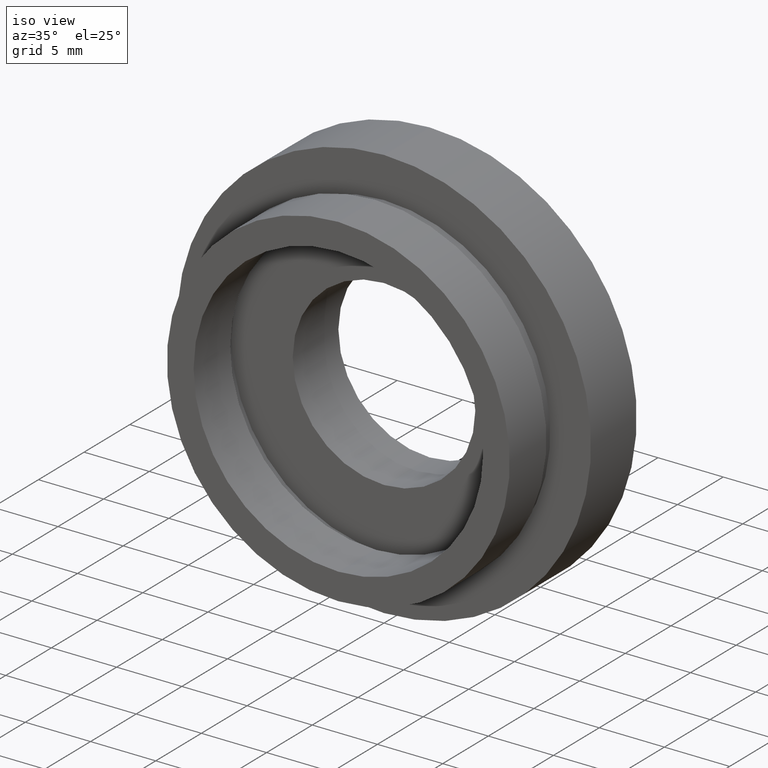
[diagram: clean part render]
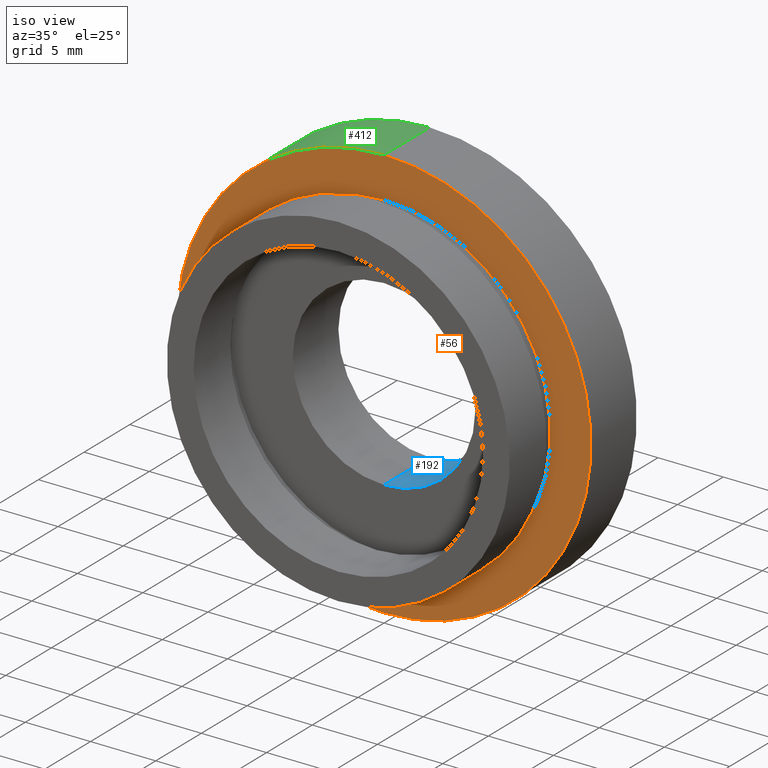
[diagram: same view with three faces highlighted in distinct colors, each labeled with its STEP entity id]
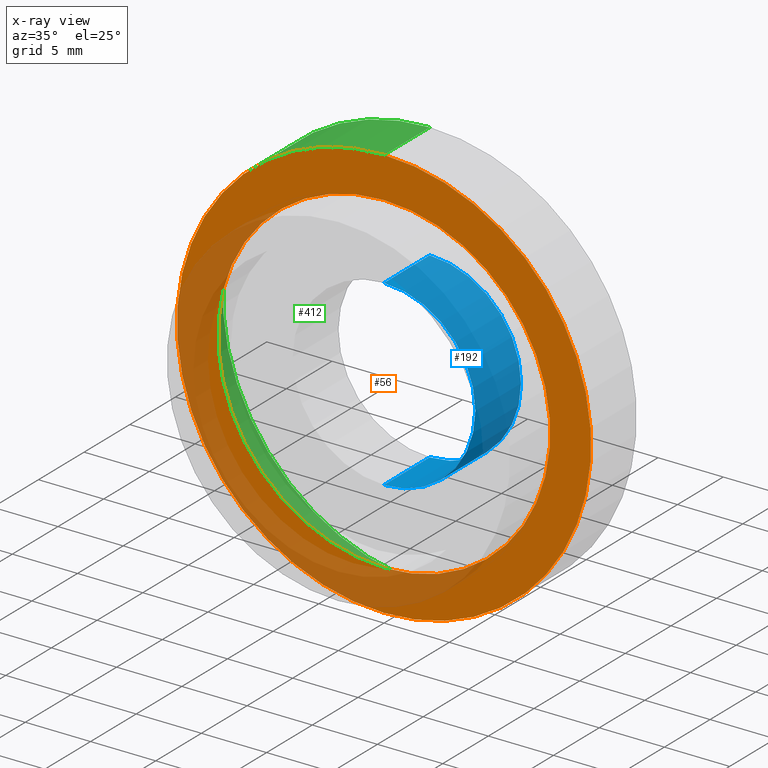
[diagram: x-ray of the same camera — body ghosted, the three highlighted faces saturated]
A machine part, iso view with three faces highlighted in distinct colors.
The next image is the same camera in x-ray (body ghosted, the three faces saturated) — at least one of them is partly hidden behind the body in this view.
Their STEP definitions:

[orange] entity #56 — the highlighted planar face has unit normal (-0, 1, 0).
#7 = ORIENTED_EDGE ( 'NONE', *, *, #143, .T. ) ;
#46 = CARTESIAN_POINT ( 'NONE',  ( 15.87500000000000000, 5.000000000000000900, 0.0000000000000000000 ) ) ;
#56 = ADVANCED_FACE ( 'NONE', ( #171, #326 ), #64, .F. ) ;
#61 = CIRCLE ( 'NONE', #371, 12.75000000000000000 ) ;
#64 = PLANE ( 'NONE',  #146 ) ;
#73 = DIRECTION ( 'NONE',  ( -0.0000000000000000000, 1.000000000000000000, -0.0000000000000000000 ) ) ;
#87 = CARTESIAN_POINT ( 'NONE',  ( 0.0000000000000000000, 5.000000000000000900, 12.75000000000000000 ) ) ;
#88 = VERTEX_POINT ( 'NONE', #188 ) ;
#126 = DIRECTION ( 'NONE',  ( -0.0000000000000000000, 1.000000000000000000, -0.0000000000000000000 ) ) ;
#143 = EDGE_CURVE ( 'NONE', #309, #409, #61, .T. ) ;
#146 = AXIS2_PLACEMENT_3D ( 'NONE', #46, #237, #523 ) ;
#152 = CIRCLE ( 'NONE', #380, 12.75000000000000000 ) ;
#159 = EDGE_LOOP ( 'NONE', ( #284, #170 ) ) ;
#164 = EDGE_CURVE ( 'NONE', #88, #564, #425, .T. ) ;
#170 = ORIENTED_EDGE ( 'NONE', *, *, #164, .F. ) ;
#171 = FACE_OUTER_BOUND ( 'NONE', #159, .T. ) ;
#188 = CARTESIAN_POINT ( 'NONE',  ( 1.944126793646423200E-015, 5.000000000000000900, -15.87500000000000000 ) ) ;
#194 = DIRECTION ( 'NONE',  ( 0.0000000000000000000, 0.0000000000000000000, 1.000000000000000000 ) ) ;
#217 = CARTESIAN_POINT ( 'NONE',  ( 1.561424668912875100E-015, 5.000000000000000900, -12.75000000000000000 ) ) ;
#237 = DIRECTION ( 'NONE',  ( -0.0000000000000000000, 1.000000000000000000, 0.0000000000000000000 ) ) ;
#245 = CARTESIAN_POINT ( 'NONE',  ( 0.0000000000000000000, 5.000000000000000900, 15.87500000000000000 ) ) ;
#269 = DIRECTION ( 'NONE',  ( 0.0000000000000000000, 0.0000000000000000000, 1.000000000000000000 ) ) ;
#284 = ORIENTED_EDGE ( 'NONE', *, *, #553, .F. ) ;
#285 = CIRCLE ( 'NONE', #330, 15.87500000000000000 ) ;
#309 = VERTEX_POINT ( 'NONE', #217 ) ;
#326 = FACE_BOUND ( 'NONE', #571, .T. ) ;
#330 = AXIS2_PLACEMENT_3D ( 'NONE', #537, #73, #430 ) ;
#371 = AXIS2_PLACEMENT_3D ( 'NONE', #384, #393, #194 ) ;
#376 = CARTESIAN_POINT ( 'NONE',  ( 0.0000000000000000000, 5.000000000000000900, 0.0000000000000000000 ) ) ;
#380 = AXIS2_PLACEMENT_3D ( 'NONE', #619, #606, #436 ) ;
#384 = CARTESIAN_POINT ( 'NONE',  ( 0.0000000000000000000, 5.000000000000000900, 0.0000000000000000000 ) ) ;
#393 = DIRECTION ( 'NONE',  ( -0.0000000000000000000, 1.000000000000000000, -0.0000000000000000000 ) ) ;
#409 = VERTEX_POINT ( 'NONE', #87 ) ;
#425 = CIRCLE ( 'NONE', #447, 15.87500000000000000 ) ;
#430 = DIRECTION ( 'NONE',  ( 0.0000000000000000000, 0.0000000000000000000, 1.000000000000000000 ) ) ;
#436 = DIRECTION ( 'NONE',  ( 0.0000000000000000000, 0.0000000000000000000, 1.000000000000000000 ) ) ;
#447 = AXIS2_PLACEMENT_3D ( 'NONE', #376, #126, #269 ) ;
#523 = DIRECTION ( 'NONE',  ( 0.0000000000000000000, 0.0000000000000000000, 1.000000000000000000 ) ) ;
#537 = CARTESIAN_POINT ( 'NONE',  ( 0.0000000000000000000, 5.000000000000000900, 0.0000000000000000000 ) ) ;
#550 = ORIENTED_EDGE ( 'NONE', *, *, #560, .T. ) ;
#553 = EDGE_CURVE ( 'NONE', #564, #88, #285, .T. ) ;
#560 = EDGE_CURVE ( 'NONE', #409, #309, #152, .T. ) ;
#564 = VERTEX_POINT ( 'NONE', #245 ) ;
#571 = EDGE_LOOP ( 'NONE', ( #550, #7 ) ) ;
#606 = DIRECTION ( 'NONE',  ( -0.0000000000000000000, 1.000000000000000000, -0.0000000000000000000 ) ) ;
#619 = CARTESIAN_POINT ( 'NONE',  ( 0.0000000000000000000, 5.000000000000000900, 0.0000000000000000000 ) ) ;

[blue] entity #192 — the highlighted cylindrical surface (partial cylindrical patch) has radius 7 mm, axis along (-0, 1, -0).
#13 = VECTOR ( 'NONE', #95, 1000.000000000000000 ) ;
#39 = CARTESIAN_POINT ( 'NONE',  ( 0.0000000000000000000, 13.74468085106383300, 0.0000000000000000000 ) ) ;
#55 = CARTESIAN_POINT ( 'NONE',  ( 8.572527594031474200E-016, 13.74468085106383300, -7.000000000000001800 ) ) ;
#85 = CARTESIAN_POINT ( 'NONE',  ( 0.0000000000000000000, 4.999999999999999100, 7.000000000000001800 ) ) ;
#95 = DIRECTION ( 'NONE',  ( -0.0000000000000000000, 1.000000000000000000, -0.0000000000000000000 ) ) ;
#112 = CARTESIAN_POINT ( 'NONE',  ( 0.0000000000000000000, 10.00000000000000000, 7.000000000000001800 ) ) ;
#122 = VERTEX_POINT ( 'NONE', #403 ) ;
#135 = VERTEX_POINT ( 'NONE', #85 ) ;
#144 = VECTOR ( 'NONE', #268, 1000.000000000000000 ) ;
#181 = CARTESIAN_POINT ( 'NONE',  ( 0.0000000000000000000, 13.74468085106383300, 7.000000000000001800 ) ) ;
#186 = AXIS2_PLACEMENT_3D ( 'NONE', #576, #295, #499 ) ;
#192 = ADVANCED_FACE ( 'NONE', ( #623 ), #347, .F. ) ;
#203 = ORIENTED_EDGE ( 'NONE', *, *, #520, .T. ) ;
#214 = AXIS2_PLACEMENT_3D ( 'NONE', #39, #545, #464 ) ;
#221 = CARTESIAN_POINT ( 'NONE',  ( 8.572527594031474200E-016, 4.999999999999999100, -7.000000000000001800 ) ) ;
#234 = EDGE_LOOP ( 'NONE', ( #271, #449, #319, #203 ) ) ;
#241 = LINE ( 'NONE', #55, #13 ) ;
#268 = DIRECTION ( 'NONE',  ( -0.0000000000000000000, 1.000000000000000000, -0.0000000000000000000 ) ) ;
#271 = ORIENTED_EDGE ( 'NONE', *, *, #385, .F. ) ;
#277 = EDGE_CURVE ( 'NONE', #135, #397, #471, .T. ) ;
#295 = DIRECTION ( 'NONE',  ( -0.0000000000000000000, 1.000000000000000000, -0.0000000000000000000 ) ) ;
#319 = ORIENTED_EDGE ( 'NONE', *, *, #597, .T. ) ;
#320 = DIRECTION ( 'NONE',  ( 0.0000000000000000000, 0.0000000000000000000, 1.000000000000000000 ) ) ;
#347 = CYLINDRICAL_SURFACE ( 'NONE', #214, 7.000000000000001800 ) ;
#349 = DIRECTION ( 'NONE',  ( -0.0000000000000000000, 1.000000000000000000, -0.0000000000000000000 ) ) ;
#353 = CARTESIAN_POINT ( 'NONE',  ( 0.0000000000000000000, 4.999999999999999100, 0.0000000000000000000 ) ) ;
#357 = VERTEX_POINT ( 'NONE', #112 ) ;
#385 = EDGE_CURVE ( 'NONE', #397, #122, #241, .T. ) ;
#397 = VERTEX_POINT ( 'NONE', #221 ) ;
#403 = CARTESIAN_POINT ( 'NONE',  ( 8.572527594031474200E-016, 10.00000000000000000, -7.000000000000001800 ) ) ;
#449 = ORIENTED_EDGE ( 'NONE', *, *, #277, .F. ) ;
#464 = DIRECTION ( 'NONE',  ( 0.0000000000000000000, 0.0000000000000000000, 1.000000000000000000 ) ) ;
#471 = CIRCLE ( 'NONE', #574, 7.000000000000001800 ) ;
#499 = DIRECTION ( 'NONE',  ( 0.0000000000000000000, 0.0000000000000000000, 1.000000000000000000 ) ) ;
#520 = EDGE_CURVE ( 'NONE', #357, #122, #559, .T. ) ;
#543 = LINE ( 'NONE', #181, #144 ) ;
#545 = DIRECTION ( 'NONE',  ( -0.0000000000000000000, 1.000000000000000000, -0.0000000000000000000 ) ) ;
#559 = CIRCLE ( 'NONE', #186, 7.000000000000001800 ) ;
#574 = AXIS2_PLACEMENT_3D ( 'NONE', #353, #349, #320 ) ;
#576 = CARTESIAN_POINT ( 'NONE',  ( 0.0000000000000000000, 10.00000000000000000, 0.0000000000000000000 ) ) ;
#597 = EDGE_CURVE ( 'NONE', #135, #357, #543, .T. ) ;
#623 = FACE_OUTER_BOUND ( 'NONE', #234, .T. ) ;

[green] entity #412 — the highlighted cylindrical surface (partial cylindrical patch) has radius 15.875 mm, axis along (-0, 1, -0).
#8 = CYLINDRICAL_SURFACE ( 'NONE', #257, 15.87500000000000000 ) ;
#21 = LINE ( 'NONE', #24, #609 ) ;
#24 = CARTESIAN_POINT ( 'NONE',  ( 0.0000000000000000000, 13.74468085106383300, 15.87500000000000000 ) ) ;
#25 = CARTESIAN_POINT ( 'NONE',  ( 0.0000000000000000000, 13.74468085106383300, 0.0000000000000000000 ) ) ;
#30 = VERTEX_POINT ( 'NONE', #279 ) ;
#60 = VERTEX_POINT ( 'NONE', #218 ) ;
#78 = DIRECTION ( 'NONE',  ( 0.0000000000000000000, 0.0000000000000000000, 1.000000000000000000 ) ) ;
#88 = VERTEX_POINT ( 'NONE', #188 ) ;
#113 = ORIENTED_EDGE ( 'NONE', *, *, #164, .T. ) ;
#114 = DIRECTION ( 'NONE',  ( -0.0000000000000000000, 1.000000000000000000, -0.0000000000000000000 ) ) ;
#118 = EDGE_CURVE ( 'NONE', #30, #60, #508, .T. ) ;
#126 = DIRECTION ( 'NONE',  ( -0.0000000000000000000, 1.000000000000000000, -0.0000000000000000000 ) ) ;
#142 = ORIENTED_EDGE ( 'NONE', *, *, #118, .F. ) ;
#164 = EDGE_CURVE ( 'NONE', #88, #564, #425, .T. ) ;
#167 = VECTOR ( 'NONE', #281, 1000.000000000000000 ) ;
#188 = CARTESIAN_POINT ( 'NONE',  ( 1.944126793646423200E-015, 5.000000000000000900, -15.87500000000000000 ) ) ;
#218 = CARTESIAN_POINT ( 'NONE',  ( 0.0000000000000000000, 10.00000000000000000, 15.87500000000000000 ) ) ;
#230 = FACE_OUTER_BOUND ( 'NONE', #616, .T. ) ;
#245 = CARTESIAN_POINT ( 'NONE',  ( 0.0000000000000000000, 5.000000000000000900, 15.87500000000000000 ) ) ;
#257 = AXIS2_PLACEMENT_3D ( 'NONE', #25, #114, #78 ) ;
#269 = DIRECTION ( 'NONE',  ( 0.0000000000000000000, 0.0000000000000000000, 1.000000000000000000 ) ) ;
#279 = CARTESIAN_POINT ( 'NONE',  ( 1.944126793646423200E-015, 10.00000000000000000, -15.87500000000000000 ) ) ;
#280 = CARTESIAN_POINT ( 'NONE',  ( 1.944126793646423200E-015, 13.74468085106383300, -15.87500000000000000 ) ) ;
#281 = DIRECTION ( 'NONE',  ( -0.0000000000000000000, 1.000000000000000000, -0.0000000000000000000 ) ) ;
#318 = DIRECTION ( 'NONE',  ( 0.0000000000000000000, 0.0000000000000000000, 1.000000000000000000 ) ) ;
#374 = DIRECTION ( 'NONE',  ( -0.0000000000000000000, 1.000000000000000000, -0.0000000000000000000 ) ) ;
#376 = CARTESIAN_POINT ( 'NONE',  ( 0.0000000000000000000, 5.000000000000000900, 0.0000000000000000000 ) ) ;
#412 = ADVANCED_FACE ( 'NONE', ( #230 ), #8, .T. ) ;
#413 = ORIENTED_EDGE ( 'NONE', *, *, #474, .T. ) ;
#425 = CIRCLE ( 'NONE', #447, 15.87500000000000000 ) ;
#447 = AXIS2_PLACEMENT_3D ( 'NONE', #376, #126, #269 ) ;
#474 = EDGE_CURVE ( 'NONE', #564, #60, #21, .T. ) ;
#475 = CARTESIAN_POINT ( 'NONE',  ( 0.0000000000000000000, 10.00000000000000000, 0.0000000000000000000 ) ) ;
#508 = CIRCLE ( 'NONE', #610, 15.87500000000000000 ) ;
#536 = DIRECTION ( 'NONE',  ( -0.0000000000000000000, 1.000000000000000000, -0.0000000000000000000 ) ) ;
#538 = EDGE_CURVE ( 'NONE', #88, #30, #552, .T. ) ;
#548 = ORIENTED_EDGE ( 'NONE', *, *, #538, .F. ) ;
#552 = LINE ( 'NONE', #280, #167 ) ;
#564 = VERTEX_POINT ( 'NONE', #245 ) ;
#609 = VECTOR ( 'NONE', #374, 1000.000000000000000 ) ;
#610 = AXIS2_PLACEMENT_3D ( 'NONE', #475, #536, #318 ) ;
#616 = EDGE_LOOP ( 'NONE', ( #548, #113, #413, #142 ) ) ;